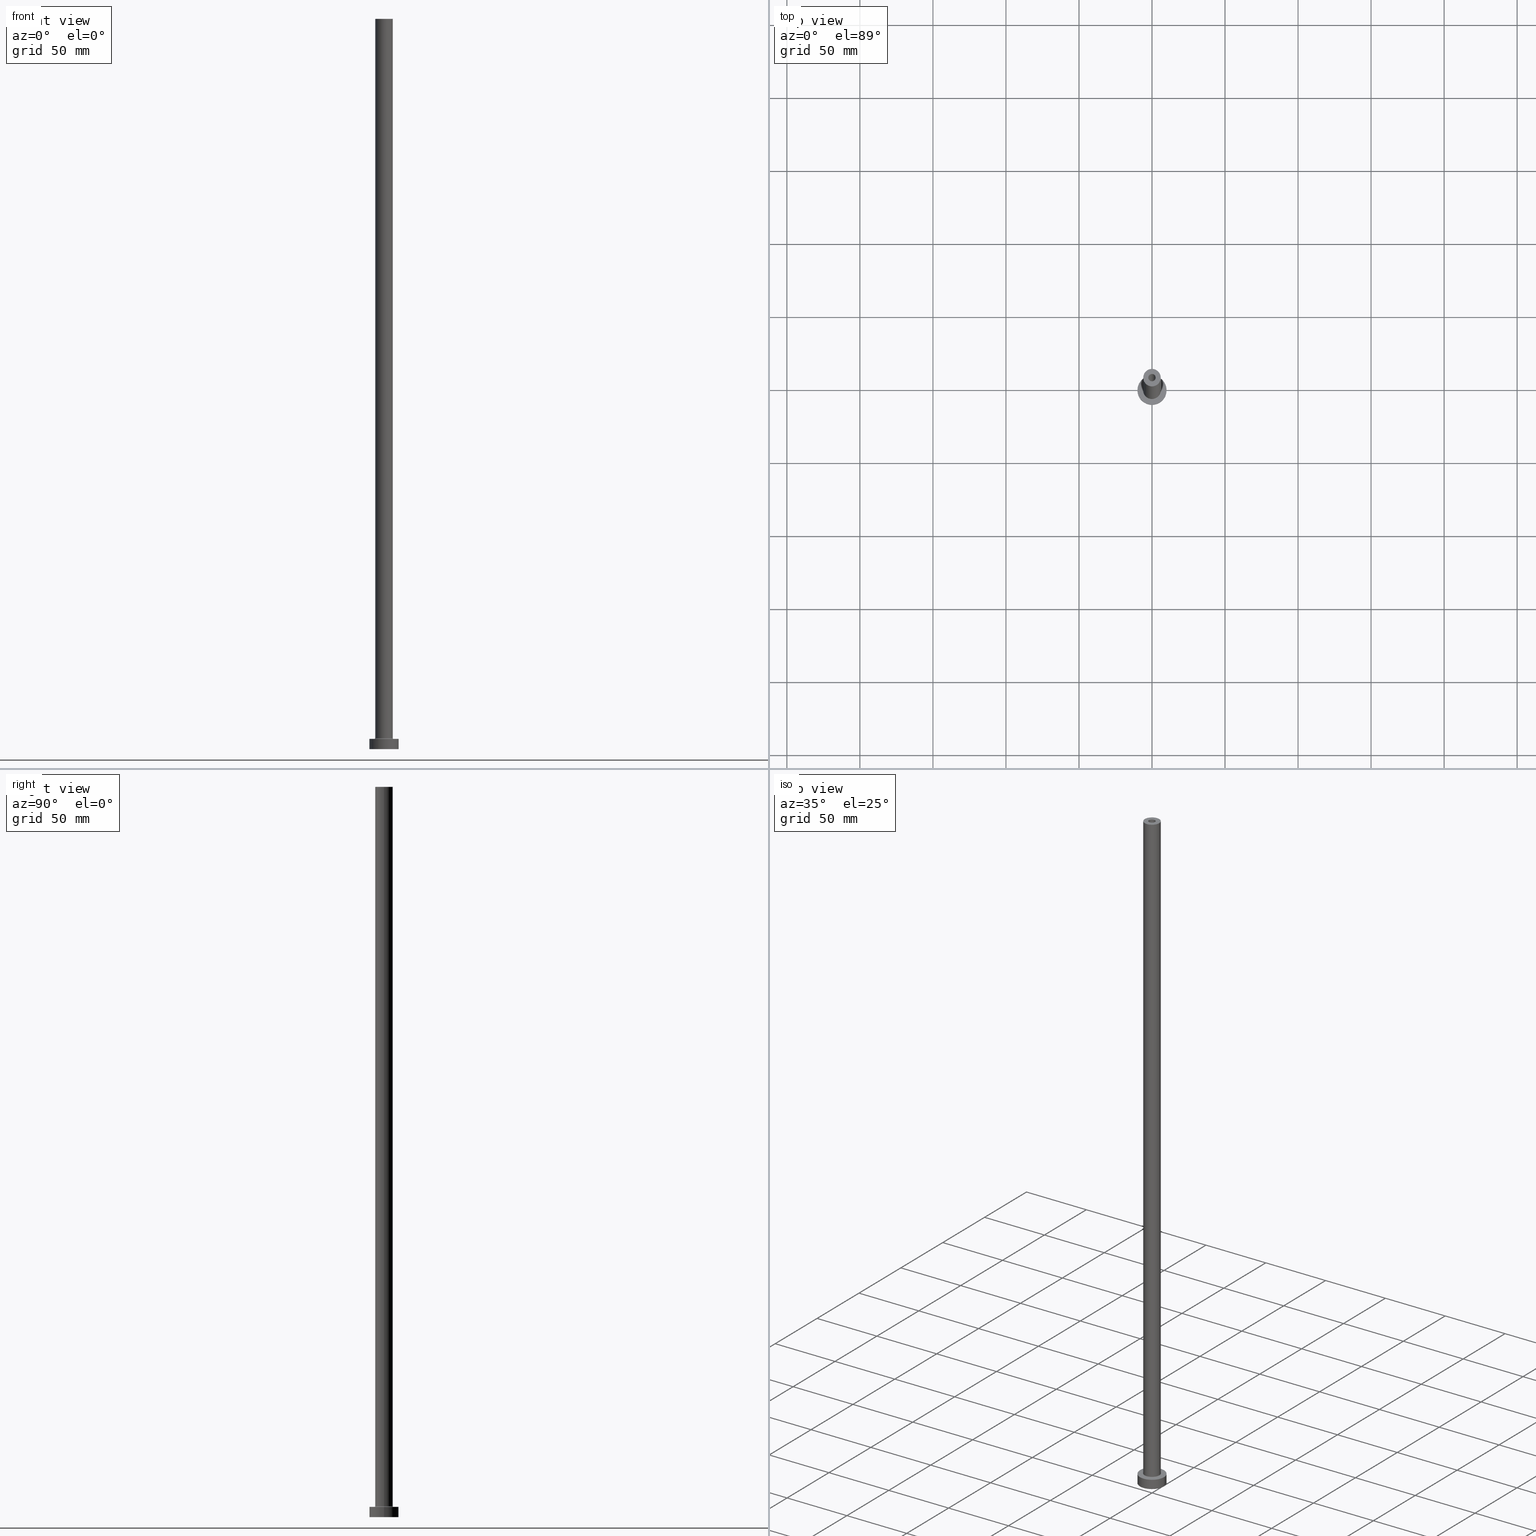
[diagram: canonical four-view strip — front | top / right | iso, engineering-drawing reading convention]
A machine part, canonical four-view strip (front | top / right | iso — engineering-drawing reading convention). The complete STEP part file that produces these views, byte-faithful:
ISO-10303-21;
HEADER;
FILE_DESCRIPTION (( 'STEP AP203' ),
    '1' );
FILE_NAME ('abd1.STEP',
    '2023-02-13T16:45:04',
    ( '' ),
    ( '' ),
    'SwSTEP 2.0',
    'SolidWorks 2019',
    '' );
FILE_SCHEMA (( 'CONFIG_CONTROL_DESIGN' ));
ENDSEC;

DATA;
#1 = DIRECTION ( 'NONE',  ( 0.000000000000000000, 0.000000000000000000, 1.000000000000000000 ) ) ;
#2 = ORIENTED_EDGE ( 'NONE', *, *, #287, .T. ) ;
#3 = DIRECTION ( 'NONE',  ( 1.000000000000000000, 0.000000000000000000, 0.000000000000000000 ) ) ;
#4 = AXIS2_PLACEMENT_3D ( 'NONE', #431, #364, #299 ) ;
#5 = DIRECTION ( 'NONE',  ( 1.000000000000000000, 0.000000000000000000, 0.000000000000000000 ) ) ;
#6 = CARTESIAN_POINT ( 'NONE',  ( 0.000000000000000000, 0.000000000000000000, 7.500000000000007105 ) ) ;
#7 = EDGE_CURVE ( 'NONE', #435, #124, #220, .T. ) ;
#8 = DIRECTION ( 'NONE',  ( -1.000000000000000000, 0.000000000000000000, 0.000000000000000000 ) ) ;
#9 = CARTESIAN_POINT ( 'NONE',  ( 0.000000000000000000, 0.000000000000000000, 7.500000000000007105 ) ) ;
#10 = ORIENTED_EDGE ( 'NONE', *, *, #95, .T. ) ;
#11 = APPLICATION_PROTOCOL_DEFINITION ( 'international standard', 'config_control_design', 1994, #327 ) ;
#12 = DIRECTION ( 'NONE',  ( -0.000000000000000000, -0.000000000000000000, -1.000000000000000000 ) ) ;
#13 = EDGE_CURVE ( 'NONE', #358, #191, #260, .T. ) ;
#14 = ORIENTED_EDGE ( 'NONE', *, *, #81, .F. ) ;
#15 = DIRECTION ( 'NONE',  ( 1.000000000000000000, 0.000000000000000000, 0.000000000000000000 ) ) ;
#16 = AXIS2_PLACEMENT_3D ( 'NONE', #87, #123, #441 ) ;
#17 = ORIENTED_EDGE ( 'NONE', *, *, #273, .F. ) ;
#18 = VERTEX_POINT ( 'NONE', #36 ) ;
#19 = PERSON_AND_ORGANIZATION_ROLE ( 'creator' ) ;
#20 = DIRECTION ( 'NONE',  ( -0.000000000000000000, -0.000000000000000000, -1.000000000000000000 ) ) ;
#21 = EDGE_LOOP ( 'NONE', ( #138, #152 ) ) ;
#22 = APPROVAL_DATE_TIME ( #388, #414 ) ;
#23 = VECTOR ( 'NONE', #27, 1000.000000000000000 ) ;
#24 = CARTESIAN_POINT ( 'NONE',  ( -2.649999999999999911, 0.000000000000000000, 462.4953318805773961 ) ) ;
#25 = ORIENTED_EDGE ( 'NONE', *, *, #102, .T. ) ;
#26 = DATE_TIME_ROLE ( 'classification_date' ) ;
#27 = DIRECTION ( 'NONE',  ( 0.000000000000000000, 0.000000000000000000, -1.000000000000000000 ) ) ;
#28 = CARTESIAN_POINT ( 'NONE',  ( 0.000000000000000000, 0.000000000000000000, 0.000000000000000000 ) ) ;
#29 = CIRCLE ( 'NONE', #216, 10.00000000000000000 ) ;
#30 = DIRECTION ( 'NONE',  ( 0.000000000000000000, 0.000000000000000000, 1.000000000000000000 ) ) ;
#31 = CARTESIAN_POINT ( 'NONE',  ( 10.00000000000000000, 1.224646799147353256E-15, 7.000000000000000000 ) ) ;
#32 = DIRECTION ( 'NONE',  ( 1.000000000000000000, 0.000000000000000000, 0.000000000000000000 ) ) ;
#33 = APPROVAL_DATE_TIME ( #105, #398 ) ;
#34 = FACE_OUTER_BOUND ( 'NONE', #382, .T. ) ;
#35 = AXIS2_PLACEMENT_3D ( 'NONE', #301, #457, #453 ) ;
#36 = CARTESIAN_POINT ( 'NONE',  ( 10.00000000000000000, 1.224646799147353256E-15, 7.000000000000000000 ) ) ;
#37 = APPROVAL_PERSON_ORGANIZATION ( #421, #398, #171 ) ;
#38 = DIRECTION ( 'NONE',  ( 1.000000000000000000, 0.000000000000000000, 0.000000000000000000 ) ) ;
#39 = EDGE_CURVE ( 'NONE', #18, #219, #316, .T. ) ;
#40 = PERSON_AND_ORGANIZATION ( #237, #250 ) ;
#41 = ORIENTED_EDGE ( 'NONE', *, *, #439, .F. ) ;
#42 =( NAMED_UNIT ( * ) SI_UNIT ( $, .STERADIAN. ) SOLID_ANGLE_UNIT ( ) );
#43 = CARTESIAN_POINT ( 'NONE',  ( 0.000000000000000000, 0.000000000000000000, 7.000000000000000000 ) ) ;
#44 = ADVANCED_FACE ( 'NONE', ( #161 ), #83, .F. ) ;
#45 = AXIS2_PLACEMENT_3D ( 'NONE', #73, #223, #366 ) ;
#46 = CARTESIAN_POINT ( 'NONE',  ( 0.000000000000000000, 0.000000000000000000, 7.500000000000007105 ) ) ;
#47 = ORIENTED_EDGE ( 'NONE', *, *, #194, .F. ) ;
#48 = DIRECTION ( 'NONE',  ( 1.000000000000000000, 0.000000000000000000, 0.000000000000000000 ) ) ;
#49 = CYLINDRICAL_SURFACE ( 'NONE', #384, 6.000000000000000888 ) ;
#50 = EDGE_LOOP ( 'NONE', ( #145, #142 ) ) ;
#51 = AXIS2_PLACEMENT_3D ( 'NONE', #345, #308, #446 ) ;
#52 = CARTESIAN_POINT ( 'NONE',  ( 0.000000000000000000, 0.000000000000000000, 455.0000000000000000 ) ) ;
#53 = PRODUCT ( 'abd1', 'abd1', '', ( #302 ) ) ;
#54 = TOROIDAL_SURFACE ( 'NONE', #368, 6.500000000000000888, 0.5000000000000000000 ) ;
#55 = ADVANCED_FACE ( 'NONE', ( #80 ), #54, .F. ) ;
#56 = PLANE ( 'NONE',  #224 ) ;
#57 = PERSON_AND_ORGANIZATION ( #237, #250 ) ;
#58 = CARTESIAN_POINT ( 'NONE',  ( 0.000000000000000000, 0.000000000000000000, 455.0000000000000000 ) ) ;
#59 = APPROVAL_STATUS ( 'not_yet_approved' ) ;
#60 = CIRCLE ( 'NONE', #359, 2.500000000000000000 ) ;
#61 = LOCAL_TIME ( 17, 45, 4.000000000000000000, #208 ) ;
#62 = ADVANCED_FACE ( 'NONE', ( #188, #347 ), #305, .T. ) ;
#63 = DIRECTION ( 'NONE',  ( 1.000000000000000000, 0.000000000000000000, -0.000000000000000000 ) ) ;
#64 = DESIGN_CONTEXT ( 'detailed design', #327, 'design' ) ;
#65 = ORIENTED_EDGE ( 'NONE', *, *, #350, .T. ) ;
#66 = CARTESIAN_POINT ( 'NONE',  ( 6.000000000000000888, 7.347880794884120722E-16, 500.0000000000000000 ) ) ;
#67 = ORIENTED_EDGE ( 'NONE', *, *, #350, .F. ) ;
#68 = DIRECTION ( 'NONE',  ( -0.000000000000000000, -0.000000000000000000, -1.000000000000000000 ) ) ;
#69 = VECTOR ( 'NONE', #68, 1000.000000000000000 ) ;
#70 = CARTESIAN_POINT ( 'NONE',  ( -6.500000000000000888, 7.960204194457796463E-16, 7.000000000000002665 ) ) ;
#71 = CARTESIAN_POINT ( 'NONE',  ( 0.000000000000000000, 0.000000000000000000, 500.0000000000000000 ) ) ;
#72 = FACE_OUTER_BOUND ( 'NONE', #97, .T. ) ;
#73 = CARTESIAN_POINT ( 'NONE',  ( 0.000000000000000000, 0.000000000000000000, 7.500000000000007105 ) ) ;
#74 = CARTESIAN_POINT ( 'NONE',  ( 2.500000000000000000, 3.061616997868382648E-16, 500.0000000000000000 ) ) ;
#75 = AXIS2_PLACEMENT_3D ( 'NONE', #317, #174, #285 ) ;
#76 = ADVANCED_FACE ( 'NONE', ( #440 ), #89, .T. ) ;
#77 = VERTEX_POINT ( 'NONE', #111 ) ;
#78 = CC_DESIGN_SECURITY_CLASSIFICATION ( #168, ( #374 ) ) ;
#79 = APPROVAL_DATE_TIME ( #278, #461 ) ;
#80 = FACE_OUTER_BOUND ( 'NONE', #166, .T. ) ;
#81 = EDGE_CURVE ( 'NONE', #426, #215, #427, .T. ) ;
#82 = VERTEX_POINT ( 'NONE', #371 ) ;
#83 = CYLINDRICAL_SURFACE ( 'NONE', #325, 2.500000000000000000 ) ;
#84 = CIRCLE ( 'NONE', #257, 2.649999999999999911 ) ;
#85 = ORIENTED_EDGE ( 'NONE', *, *, #336, .F. ) ;
#86 = DIRECTION ( 'NONE',  ( -1.000000000000000000, 0.000000000000000000, 0.000000000000000000 ) ) ;
#87 = CARTESIAN_POINT ( 'NONE',  ( 0.000000000000000000, 0.000000000000000000, 7.000000000000000000 ) ) ;
#88 = ORIENTED_EDGE ( 'NONE', *, *, #39, .T. ) ;
#89 = CYLINDRICAL_SURFACE ( 'NONE', #160, 6.000000000000000888 ) ;
#90 = ADVANCED_FACE ( 'NONE', ( #233 ), #49, .T. ) ;
#91 = DIRECTION ( 'NONE',  ( 1.000000000000000000, 0.000000000000000000, 0.000000000000000000 ) ) ;
#92 = APPROVAL_STATUS ( 'not_yet_approved' ) ;
#93 = CARTESIAN_POINT ( 'NONE',  ( 2.500000000000000000, 3.061616997868382648E-16, 500.0000000000000000 ) ) ;
#94 = PERSON_AND_ORGANIZATION ( #237, #250 ) ;
#95 = EDGE_CURVE ( 'NONE', #77, #393, #349, .T. ) ;
#96 = PLANE ( 'NONE',  #295 ) ;
#97 = EDGE_LOOP ( 'NONE', ( #229, #326, #378, #85 ) ) ;
#98 = DIRECTION ( 'NONE',  ( 0.000000000000000000, 0.000000000000000000, -1.000000000000000000 ) ) ;
#99 = AXIS2_PLACEMENT_3D ( 'NONE', #447, #193, #343 ) ;
#100 = DIRECTION ( 'NONE',  ( 1.224646799147353207E-16, 1.000000000000000000, -0.000000000000000000 ) ) ;
#101 = CARTESIAN_POINT ( 'NONE',  ( 6.000000000000000888, 7.347880794884120722E-16, 7.500000000000007105 ) ) ;
#102 = EDGE_CURVE ( 'NONE', #219, #18, #143, .T. ) ;
#103 = CIRCLE ( 'NONE', #340, 2.500000000000000000 ) ;
#104 = VECTOR ( 'NONE', #269, 1000.000000000000000 ) ;
#105 = DATE_AND_TIME ( #284, #61 ) ;
#106 = CARTESIAN_POINT ( 'NONE',  ( 2.500000000000000000, 3.061616997868382648E-16, 455.0000000000000000 ) ) ;
#107 = EDGE_LOOP ( 'NONE', ( #387, #297, #108, #275 ) ) ;
#108 = ORIENTED_EDGE ( 'NONE', *, *, #13, .T. ) ;
#109 = DIRECTION ( 'NONE',  ( -1.000000000000000000, 0.000000000000000000, 0.000000000000000000 ) ) ;
#110 = DATE_AND_TIME ( #312, #120 ) ;
#111 = CARTESIAN_POINT ( 'NONE',  ( 2.649999999999999911, 3.245314017740485962E-16, 0.000000000000000000 ) ) ;
#112 = CARTESIAN_POINT ( 'NONE',  ( 2.649999999999999911, 3.245314017740485962E-16, 462.4953318805773961 ) ) ;
#113 = CARTESIAN_POINT ( 'NONE',  ( 0.000000000000000000, 0.000000000000000000, 7.000000000000000000 ) ) ;
#114 = ORIENTED_EDGE ( 'NONE', *, *, #130, .T. ) ;
#115 = PERSON_AND_ORGANIZATION ( #237, #250 ) ;
#116 = DIRECTION ( 'NONE',  ( -0.000000000000000000, -0.000000000000000000, -1.000000000000000000 ) ) ;
#117 = AXIS2_PLACEMENT_3D ( 'NONE', #404, #261, #402 ) ;
#118 = CIRCLE ( 'NONE', #217, 2.500000000000000000 ) ;
#119 = ORIENTED_EDGE ( 'NONE', *, *, #365, .F. ) ;
#120 = LOCAL_TIME ( 17, 45, 4.000000000000000000, #407 ) ;
#121 = FACE_BOUND ( 'NONE', #443, .T. ) ;
#122 = EDGE_CURVE ( 'NONE', #191, #358, #424, .T. ) ;
#123 = DIRECTION ( 'NONE',  ( -0.000000000000000000, -0.000000000000000000, -1.000000000000000000 ) ) ;
#124 = VERTEX_POINT ( 'NONE', #150 ) ;
#125 = CARTESIAN_POINT ( 'NONE',  ( -10.00000000000000000, 0.000000000000000000, 7.000000000000000000 ) ) ;
#126 = CIRCLE ( 'NONE', #4, 6.000000000000000888 ) ;
#127 = PERSON_AND_ORGANIZATION ( #237, #250 ) ;
#128 = APPROVAL_PERSON_ORGANIZATION ( #40, #461, #200 ) ;
#129 = DIRECTION ( 'NONE',  ( 1.000000000000000000, 0.000000000000000000, -0.000000000000000000 ) ) ;
#130 = EDGE_CURVE ( 'NONE', #231, #82, #135, .T. ) ;
#131 = DATE_AND_TIME ( #246, #177 ) ;
#132 = CARTESIAN_POINT ( 'NONE',  ( -6.000000000000000888, 0.000000000000000000, 7.500000000000007105 ) ) ;
#133 = DIRECTION ( 'NONE',  ( 0.000000000000000000, 0.000000000000000000, 1.000000000000000000 ) ) ;
#134 = ORIENTED_EDGE ( 'NONE', *, *, #365, .T. ) ;
#135 = CIRCLE ( 'NONE', #51, 10.00000000000000000 ) ;
#136 = LOCAL_TIME ( 17, 45, 4.000000000000000000, #304 ) ;
#137 = CARTESIAN_POINT ( 'NONE',  ( 6.500000000000000888, 0.000000000000000000, 7.000000000000002665 ) ) ;
#138 = ORIENTED_EDGE ( 'NONE', *, *, #232, .F. ) ;
#139 = ADVANCED_FACE ( 'NONE', ( #121, #276 ), #235, .F. ) ;
#140 = DIRECTION ( 'NONE',  ( 0.000000000000000000, 0.000000000000000000, -1.000000000000000000 ) ) ;
#141 = LINE ( 'NONE', #147, #264 ) ;
#142 = ORIENTED_EDGE ( 'NONE', *, *, #401, .F. ) ;
#143 = CIRCLE ( 'NONE', #190, 10.00000000000000000 ) ;
#144 = DIRECTION ( 'NONE',  ( 1.000000000000000000, 0.000000000000000000, 0.000000000000000000 ) ) ;
#145 = ORIENTED_EDGE ( 'NONE', *, *, #310, .F. ) ;
#146 = EDGE_CURVE ( 'NONE', #393, #77, #84, .T. ) ;
#147 = CARTESIAN_POINT ( 'NONE',  ( -10.00000000000000000, 0.000000000000000000, 7.000000000000000000 ) ) ;
#148 = DIRECTION ( 'NONE',  ( 0.000000000000000000, -1.000000000000000000, 0.000000000000000000 ) ) ;
#149 = ORIENTED_EDGE ( 'NONE', *, *, #445, .F. ) ;
#150 = CARTESIAN_POINT ( 'NONE',  ( -2.500000000000000000, 0.000000000000000000, 500.0000000000000000 ) ) ;
#151 = DIRECTION ( 'NONE',  ( -1.000000000000000000, 0.000000000000000000, 0.000000000000000000 ) ) ;
#152 = ORIENTED_EDGE ( 'NONE', *, *, #130, .F. ) ;
#153 = SHAPE_DEFINITION_REPRESENTATION ( #383, #337 ) ;
#154 = DIRECTION ( 'NONE',  ( 1.000000000000000000, 0.000000000000000000, 0.000000000000000000 ) ) ;
#155 = DIRECTION ( 'NONE',  ( 0.000000000000000000, 0.000000000000000000, 1.000000000000000000 ) ) ;
#156 = AXIS2_PLACEMENT_3D ( 'NONE', #71, #362, #32 ) ;
#157 = CC_DESIGN_DATE_AND_TIME_ASSIGNMENT ( #131, #26, ( #168 ) ) ;
#158 = ORIENTED_EDGE ( 'NONE', *, *, #336, .T. ) ;
#159 = ADVANCED_FACE ( 'NONE', ( #425 ), #165, .T. ) ;
#160 = AXIS2_PLACEMENT_3D ( 'NONE', #341, #12, #151 ) ;
#161 = FACE_OUTER_BOUND ( 'NONE', #323, .T. ) ;
#162 = ORIENTED_EDGE ( 'NONE', *, *, #360, .T. ) ;
#163 = ORIENTED_EDGE ( 'NONE', *, *, #455, .F. ) ;
#164 = PERSON_AND_ORGANIZATION_ROLE ( 'design_owner' ) ;
#165 = CYLINDRICAL_SURFACE ( 'NONE', #380, 10.00000000000000000 ) ;
#166 = EDGE_LOOP ( 'NONE', ( #346, #227, #162, #14 ) ) ;
#167 = DIRECTION ( 'NONE',  ( 0.000000000000000000, 0.000000000000000000, 1.000000000000000000 ) ) ;
#168 = SECURITY_CLASSIFICATION ( '', '', #338 ) ;
#169 = FACE_OUTER_BOUND ( 'NONE', #309, .T. ) ;
#170 = EDGE_LOOP ( 'NONE', ( #423, #134, #114, #67 ) ) ;
#171 = APPROVAL_ROLE ( '' ) ;
#172 = MANIFOLD_SOLID_BREP ( 'Odebrat vysunut�m4', #267 ) ;
#173 = CARTESIAN_POINT ( 'NONE',  ( -6.000000000000000888, 0.000000000000000000, 500.0000000000000000 ) ) ;
#174 = DIRECTION ( 'NONE',  ( -0.000000000000000000, -0.000000000000000000, -1.000000000000000000 ) ) ;
#175 = VERTEX_POINT ( 'NONE', #420 ) ;
#176 = AXIS2_PLACEMENT_3D ( 'NONE', #253, #354, #320 ) ;
#177 = LOCAL_TIME ( 17, 45, 4.000000000000000000, #319 ) ;
#178 = LINE ( 'NONE', #31, #69 ) ;
#179 = AXIS2_PLACEMENT_3D ( 'NONE', #274, #412, #303 ) ;
#180 = DIRECTION ( 'NONE',  ( -0.000000000000000000, -0.000000000000000000, -1.000000000000000000 ) ) ;
#181 = EDGE_CURVE ( 'NONE', #259, #393, #451, .T. ) ;
#182 = EDGE_LOOP ( 'NONE', ( #211, #452 ) ) ;
#183 = CIRCLE ( 'NONE', #249, 2.649999999999999911 ) ;
#184 = CYLINDRICAL_SURFACE ( 'NONE', #444, 2.500000000000000000 ) ;
#185 = ORIENTED_EDGE ( 'NONE', *, *, #7, .F. ) ;
#186 = DIRECTION ( 'NONE',  ( -0.000000000000000000, -0.000000000000000000, -1.000000000000000000 ) ) ;
#187 = PERSON_AND_ORGANIZATION_ROLE ( 'design_supplier' ) ;
#188 = FACE_BOUND ( 'NONE', #418, .T. ) ;
#189 = ADVANCED_FACE ( 'NONE', ( #311, #244 ), #56, .F. ) ;
#190 = AXIS2_PLACEMENT_3D ( 'NONE', #113, #277, #381 ) ;
#191 = VERTEX_POINT ( 'NONE', #132 ) ;
#192 = AXIS2_PLACEMENT_3D ( 'NONE', #331, #262, #403 ) ;
#193 = DIRECTION ( 'NONE',  ( 0.000000000000000000, 0.000000000000000000, 1.000000000000000000 ) ) ;
#194 = EDGE_CURVE ( 'NONE', #124, #321, #288, .T. ) ;
#195 = VERTEX_POINT ( 'NONE', #173 ) ;
#196 = DIRECTION ( 'NONE',  ( 0.000000000000000000, 0.000000000000000000, -1.000000000000000000 ) ) ;
#197 = AXIS2_PLACEMENT_3D ( 'NONE', #334, #394, #5 ) ;
#198 = ORIENTED_EDGE ( 'NONE', *, *, #122, .F. ) ;
#199 = DIRECTION ( 'NONE',  ( 0.000000000000000000, 0.000000000000000000, 1.000000000000000000 ) ) ;
#200 = APPROVAL_ROLE ( '' ) ;
#201 = APPLICATION_CONTEXT ( 'configuration controlled 3d designs of mechanical parts and assemblies' ) ;
#202 = CARTESIAN_POINT ( 'NONE',  ( -2.500000000000000000, 0.000000000000000000, 500.0000000000000000 ) ) ;
#203 = ORIENTED_EDGE ( 'NONE', *, *, #401, .T. ) ;
#204 = PERSON_AND_ORGANIZATION_ROLE ( 'creator' ) ;
#205 = FACE_OUTER_BOUND ( 'NONE', #405, .T. ) ;
#206 = EDGE_LOOP ( 'NONE', ( #25, #88 ) ) ;
#207 = AXIS2_PLACEMENT_3D ( 'NONE', #6, #430, #144 ) ;
#208 = COORDINATED_UNIVERSAL_TIME_OFFSET ( 1, 0, .AHEAD. ) ;
#209 = CC_DESIGN_APPROVAL ( #398, ( #168 ) ) ;
#210 = LINE ( 'NONE', #392, #314 ) ;
#211 = ORIENTED_EDGE ( 'NONE', *, *, #379, .T. ) ;
#212 = DIRECTION ( 'NONE',  ( -0.000000000000000000, -0.000000000000000000, -1.000000000000000000 ) ) ;
#213 = EDGE_CURVE ( 'NONE', #435, #372, #241, .T. ) ;
#214 = FACE_OUTER_BOUND ( 'NONE', #449, .T. ) ;
#215 = VERTEX_POINT ( 'NONE', #137 ) ;
#216 = AXIS2_PLACEMENT_3D ( 'NONE', #279, #133, #417 ) ;
#217 = AXIS2_PLACEMENT_3D ( 'NONE', #434, #30, #460 ) ;
#218 = DIRECTION ( 'NONE',  ( 0.000000000000000000, 0.000000000000000000, 1.000000000000000000 ) ) ;
#219 = VERTEX_POINT ( 'NONE', #125 ) ;
#220 = CIRCLE ( 'NONE', #192, 2.500000000000000000 ) ;
#221 = DIRECTION ( 'NONE',  ( 0.000000000000000000, 0.000000000000000000, -1.000000000000000000 ) ) ;
#222 = CARTESIAN_POINT ( 'NONE',  ( 0.000000000000000000, 0.000000000000000000, 455.0000000000000000 ) ) ;
#223 = DIRECTION ( 'NONE',  ( 0.000000000000000000, 0.000000000000000000, 1.000000000000000000 ) ) ;
#224 = AXIS2_PLACEMENT_3D ( 'NONE', #58, #386, #129 ) ;
#225 = ORIENTED_EDGE ( 'NONE', *, *, #213, .T. ) ;
#226 = COORDINATED_UNIVERSAL_TIME_OFFSET ( 1, 0, .AHEAD. ) ;
#227 = ORIENTED_EDGE ( 'NONE', *, *, #13, .F. ) ;
#228 = ADVANCED_FACE ( 'NONE', ( #205 ), #247, .F. ) ;
#229 = ORIENTED_EDGE ( 'NONE', *, *, #213, .F. ) ;
#230 = TOROIDAL_SURFACE ( 'NONE', #207, 6.500000000000000888, 0.5000000000000000000 ) ;
#231 = VERTEX_POINT ( 'NONE', #454 ) ;
#232 = EDGE_CURVE ( 'NONE', #82, #231, #29, .T. ) ;
#233 = FACE_OUTER_BOUND ( 'NONE', #448, .T. ) ;
#234 = ORIENTED_EDGE ( 'NONE', *, *, #146, .T. ) ;
#235 = PLANE ( 'NONE',  #35 ) ;
#236 = ORIENTED_EDGE ( 'NONE', *, *, #353, .T. ) ;
#237 = PERSON ( 'NEUR�EN�', 'NEUR�EN�', 'NEUR�EN�', ('NEUR�EN�'), ('NEUR�EN�'), ('NEUR�EN�') ) ;
#238 = DIRECTION ( 'NONE',  ( 1.000000000000000000, 0.000000000000000000, 0.000000000000000000 ) ) ;
#239 = VERTEX_POINT ( 'NONE', #66 ) ;
#240 = APPLICATION_PROTOCOL_DEFINITION ( 'international standard', 'config_control_design', 1994, #201 ) ;
#241 = LINE ( 'NONE', #93, #290 ) ;
#242 = ORIENTED_EDGE ( 'NONE', *, *, #360, .F. ) ;
#243 = CALENDAR_DATE ( 2023, 13, 2 ) ;
#244 = FACE_OUTER_BOUND ( 'NONE', #50, .T. ) ;
#245 = ORIENTED_EDGE ( 'NONE', *, *, #146, .F. ) ;
#246 = CALENDAR_DATE ( 2023, 13, 2 ) ;
#247 = CYLINDRICAL_SURFACE ( 'NONE', #176, 2.649999999999999911 ) ;
#248 = UNCERTAINTY_MEASURE_WITH_UNIT (LENGTH_MEASURE( 1.000000000000000082E-05 ), #300, 'distance_accuracy_value', 'NONE');
#249 = AXIS2_PLACEMENT_3D ( 'NONE', #397, #1, #399 ) ;
#250 = ORGANIZATION ( 'NEUR�EN�', 'NEUR�EN�', '' ) ;
#251 = CC_DESIGN_PERSON_AND_ORGANIZATION_ASSIGNMENT ( #94, #390, ( #168 ) ) ;
#252 = ADVANCED_FACE ( 'NONE', ( #169 ), #352, .T. ) ;
#253 = CARTESIAN_POINT ( 'NONE',  ( 0.000000000000000000, 0.000000000000000000, 462.4953318805773961 ) ) ;
#254 = DIRECTION ( 'NONE',  ( 0.000000000000000000, 0.000000000000000000, 1.000000000000000000 ) ) ;
#255 = CARTESIAN_POINT ( 'NONE',  ( -2.500000000000000000, 0.000000000000000000, 455.0000000000000000 ) ) ;
#256 = CC_DESIGN_PERSON_AND_ORGANIZATION_ASSIGNMENT ( #369, #187, ( #374 ) ) ;
#257 = AXIS2_PLACEMENT_3D ( 'NONE', #28, #356, #91 ) ;
#258 = CYLINDRICAL_SURFACE ( 'NONE', #117, 2.649999999999999911 ) ;
#259 = VERTEX_POINT ( 'NONE', #429 ) ;
#260 = CIRCLE ( 'NONE', #45, 6.000000000000000888 ) ;
#261 = DIRECTION ( 'NONE',  ( 0.000000000000000000, 0.000000000000000000, -1.000000000000000000 ) ) ;
#262 = DIRECTION ( 'NONE',  ( 0.000000000000000000, 0.000000000000000000, 1.000000000000000000 ) ) ;
#263 = LINE ( 'NONE', #112, #104 ) ;
#264 = VECTOR ( 'NONE', #180, 1000.000000000000000 ) ;
#265 = CC_DESIGN_APPROVAL ( #414, ( #374 ) ) ;
#266 = ORIENTED_EDGE ( 'NONE', *, *, #310, .T. ) ;
#267 = CLOSED_SHELL ( 'NONE', ( #44, #228, #318, #76, #159, #252, #272, #139, #90, #62, #55, #395, #189, #396 ) ) ;
#268 = PRODUCT_RELATED_PRODUCT_CATEGORY ( 'detail', '', ( #53 ) ) ;
#269 = DIRECTION ( 'NONE',  ( 0.000000000000000000, 0.000000000000000000, -1.000000000000000000 ) ) ;
#270 = CARTESIAN_POINT ( 'NONE',  ( 0.000000000000000000, 0.000000000000000000, 500.0000000000000000 ) ) ;
#271 = ORIENTED_EDGE ( 'NONE', *, *, #95, .F. ) ;
#272 = ADVANCED_FACE ( 'NONE', ( #322, #422 ), #96, .T. ) ;
#273 = EDGE_CURVE ( 'NONE', #239, #358, #210, .T. ) ;
#274 = CARTESIAN_POINT ( 'NONE',  ( 0.000000000000000000, 0.000000000000000000, 0.000000000000000000 ) ) ;
#275 = ORIENTED_EDGE ( 'NONE', *, *, #353, .F. ) ;
#276 = FACE_OUTER_BOUND ( 'NONE', #21, .T. ) ;
#277 = DIRECTION ( 'NONE',  ( 0.000000000000000000, 0.000000000000000000, 1.000000000000000000 ) ) ;
#278 = DATE_AND_TIME ( #385, #136 ) ;
#279 = CARTESIAN_POINT ( 'NONE',  ( 0.000000000000000000, 0.000000000000000000, 0.000000000000000000 ) ) ;
#280 = AXIS2_PLACEMENT_3D ( 'NONE', #361, #148, #140 ) ;
#281 = EDGE_CURVE ( 'NONE', #191, #426, #406, .T. ) ;
#282 = APPROVAL_STATUS ( 'not_yet_approved' ) ;
#283 = CARTESIAN_POINT ( 'NONE',  ( 0.000000000000000000, 0.000000000000000000, 7.000000000000000000 ) ) ;
#284 = CALENDAR_DATE ( 2023, 13, 2 ) ;
#285 = DIRECTION ( 'NONE',  ( -1.000000000000000000, 0.000000000000000000, 0.000000000000000000 ) ) ;
#286 = CC_DESIGN_DATE_AND_TIME_ASSIGNMENT ( #110, #450, ( #363 ) ) ;
#287 = EDGE_CURVE ( 'NONE', #321, #372, #103, .T. ) ;
#288 = LINE ( 'NONE', #202, #416 ) ;
#289 = ORIENTED_EDGE ( 'NONE', *, *, #379, .F. ) ;
#290 = VECTOR ( 'NONE', #389, 1000.000000000000000 ) ;
#291 = CARTESIAN_POINT ( 'NONE',  ( -6.500000000000000888, 7.960204194457796463E-16, 7.500000000000007105 ) ) ;
#292 = DIRECTION ( 'NONE',  ( 1.000000000000000000, 0.000000000000000000, 0.000000000000000000 ) ) ;
#293 = CARTESIAN_POINT ( 'NONE',  ( -6.000000000000000888, 0.000000000000000000, 500.0000000000000000 ) ) ;
#294 = ORIENTED_EDGE ( 'NONE', *, *, #181, .T. ) ;
#295 = AXIS2_PLACEMENT_3D ( 'NONE', #391, #254, #63 ) ;
#296 = LINE ( 'NONE', #293, #332 ) ;
#297 = ORIENTED_EDGE ( 'NONE', *, *, #273, .T. ) ;
#298 = CARTESIAN_POINT ( 'NONE',  ( 0.000000000000000000, 0.000000000000000000, 455.0000000000000000 ) ) ;
#299 = DIRECTION ( 'NONE',  ( 1.000000000000000000, 0.000000000000000000, 0.000000000000000000 ) ) ;
#300 =( LENGTH_UNIT ( ) NAMED_UNIT ( * ) SI_UNIT ( .MILLI., .METRE. ) );
#301 = CARTESIAN_POINT ( 'NONE',  ( 0.000000000000000000, 0.000000000000000000, 0.000000000000000000 ) ) ;
#302 = MECHANICAL_CONTEXT ( 'NONE', #201, 'mechanical' ) ;
#303 = DIRECTION ( 'NONE',  ( 1.000000000000000000, 0.000000000000000000, 0.000000000000000000 ) ) ;
#304 = COORDINATED_UNIVERSAL_TIME_OFFSET ( 1, 0, .AHEAD. ) ;
#305 = PLANE ( 'NONE',  #99 ) ;
#306 = ORIENTED_EDGE ( 'NONE', *, *, #122, .T. ) ;
#307 = AXIS2_PLACEMENT_3D ( 'NONE', #291, #100, #357 ) ;
#308 = DIRECTION ( 'NONE',  ( 0.000000000000000000, 0.000000000000000000, 1.000000000000000000 ) ) ;
#309 = EDGE_LOOP ( 'NONE', ( #119, #344, #65, #329 ) ) ;
#310 = EDGE_CURVE ( 'NONE', #259, #175, #324, .T. ) ;
#311 = FACE_BOUND ( 'NONE', #415, .T. ) ;
#312 = CALENDAR_DATE ( 2023, 13, 2 ) ;
#313 = DIRECTION ( 'NONE',  ( -1.000000000000000000, 0.000000000000000000, 0.000000000000000000 ) ) ;
#314 = VECTOR ( 'NONE', #212, 1000.000000000000000 ) ;
#315 = CIRCLE ( 'NONE', #197, 6.500000000000000888 ) ;
#316 = CIRCLE ( 'NONE', #413, 10.00000000000000000 ) ;
#317 = CARTESIAN_POINT ( 'NONE',  ( 0.000000000000000000, 0.000000000000000000, 7.000000000000000000 ) ) ;
#318 = ADVANCED_FACE ( 'NONE', ( #214 ), #230, .F. ) ;
#319 = COORDINATED_UNIVERSAL_TIME_OFFSET ( 1, 0, .AHEAD. ) ;
#320 = DIRECTION ( 'NONE',  ( -1.000000000000000000, 0.000000000000000000, 0.000000000000000000 ) ) ;
#321 = VERTEX_POINT ( 'NONE', #255 ) ;
#322 = FACE_BOUND ( 'NONE', #400, .T. ) ;
#323 = EDGE_LOOP ( 'NONE', ( #459, #225, #442, #47 ) ) ;
#324 = CIRCLE ( 'NONE', #456, 2.649999999999999911 ) ;
#325 = AXIS2_PLACEMENT_3D ( 'NONE', #408, #196, #86 ) ;
#326 = ORIENTED_EDGE ( 'NONE', *, *, #7, .T. ) ;
#327 = APPLICATION_CONTEXT ( 'configuration controlled 3d designs of mechanical parts and assemblies' ) ;
#328 = CARTESIAN_POINT ( 'NONE',  ( 0.000000000000000000, 0.000000000000000000, 500.0000000000000000 ) ) ;
#329 = ORIENTED_EDGE ( 'NONE', *, *, #232, .T. ) ;
#330 = DIRECTION ( 'NONE',  ( 0.000000000000000000, 0.000000000000000000, 1.000000000000000000 ) ) ;
#331 = CARTESIAN_POINT ( 'NONE',  ( 0.000000000000000000, 0.000000000000000000, 500.0000000000000000 ) ) ;
#332 = VECTOR ( 'NONE', #186, 1000.000000000000000 ) ;
#333 = LOCAL_TIME ( 17, 45, 4.000000000000000000, #226 ) ;
#334 = CARTESIAN_POINT ( 'NONE',  ( 0.000000000000000000, 0.000000000000000000, 7.000000000000000000 ) ) ;
#335 = CC_DESIGN_PERSON_AND_ORGANIZATION_ASSIGNMENT ( #57, #204, ( #374 ) ) ;
#336 = EDGE_CURVE ( 'NONE', #372, #321, #60, .T. ) ;
#337 = ADVANCED_BREP_SHAPE_REPRESENTATION ( 'abd1', ( #172, #411 ), #458 ) ;
#338 = SECURITY_CLASSIFICATION_LEVEL ( 'unclassified' ) ;
#339 = CC_DESIGN_PERSON_AND_ORGANIZATION_ASSIGNMENT ( #351, #19, ( #363 ) ) ;
#340 = AXIS2_PLACEMENT_3D ( 'NONE', #52, #199, #292 ) ;
#341 = CARTESIAN_POINT ( 'NONE',  ( 0.000000000000000000, 0.000000000000000000, 500.0000000000000000 ) ) ;
#342 = CARTESIAN_POINT ( 'NONE',  ( 0.000000000000000000, 0.000000000000000000, 0.000000000000000000 ) ) ;
#343 = DIRECTION ( 'NONE',  ( 1.000000000000000000, 0.000000000000000000, -0.000000000000000000 ) ) ;
#344 = ORIENTED_EDGE ( 'NONE', *, *, #102, .F. ) ;
#345 = CARTESIAN_POINT ( 'NONE',  ( 0.000000000000000000, 0.000000000000000000, 0.000000000000000000 ) ) ;
#346 = ORIENTED_EDGE ( 'NONE', *, *, #281, .F. ) ;
#347 = FACE_OUTER_BOUND ( 'NONE', #182, .T. ) ;
#348 = ORIENTED_EDGE ( 'NONE', *, *, #439, .T. ) ;
#349 = CIRCLE ( 'NONE', #179, 2.649999999999999911 ) ;
#350 = EDGE_CURVE ( 'NONE', #219, #82, #141, .T. ) ;
#351 = PERSON_AND_ORGANIZATION ( #237, #250 ) ;
#352 = CYLINDRICAL_SURFACE ( 'NONE', #75, 10.00000000000000000 ) ;
#353 = EDGE_CURVE ( 'NONE', #195, #191, #296, .T. ) ;
#354 = DIRECTION ( 'NONE',  ( 0.000000000000000000, 0.000000000000000000, -1.000000000000000000 ) ) ;
#355 = CC_DESIGN_APPROVAL ( #461, ( #363 ) ) ;
#356 = DIRECTION ( 'NONE',  ( -0.000000000000000000, -0.000000000000000000, -1.000000000000000000 ) ) ;
#357 = DIRECTION ( 'NONE',  ( -1.000000000000000000, 1.224646799147351482E-16, 0.000000000000000000 ) ) ;
#358 = VERTEX_POINT ( 'NONE', #101 ) ;
#359 = AXIS2_PLACEMENT_3D ( 'NONE', #298, #218, #38 ) ;
#360 = EDGE_CURVE ( 'NONE', #358, #215, #373, .T. ) ;
#361 = CARTESIAN_POINT ( 'NONE',  ( 6.500000000000000888, 0.000000000000000000, 7.500000000000007105 ) ) ;
#362 = DIRECTION ( 'NONE',  ( 0.000000000000000000, 0.000000000000000000, 1.000000000000000000 ) ) ;
#363 = PRODUCT_DEFINITION ( 'NEZN�M�', '', #374, #64 ) ;
#364 = DIRECTION ( 'NONE',  ( 0.000000000000000000, 0.000000000000000000, 1.000000000000000000 ) ) ;
#365 = EDGE_CURVE ( 'NONE', #18, #231, #178, .T. ) ;
#366 = DIRECTION ( 'NONE',  ( 1.000000000000000000, 0.000000000000000000, 0.000000000000000000 ) ) ;
#367 = CIRCLE ( 'NONE', #156, 6.000000000000000888 ) ;
#368 = AXIS2_PLACEMENT_3D ( 'NONE', #9, #375, #238 ) ;
#369 = PERSON_AND_ORGANIZATION ( #237, #250 ) ;
#370 =( NAMED_UNIT ( * ) PLANE_ANGLE_UNIT ( ) SI_UNIT ( $, .RADIAN. ) );
#371 = CARTESIAN_POINT ( 'NONE',  ( -10.00000000000000000, 0.000000000000000000, 0.000000000000000000 ) ) ;
#372 = VERTEX_POINT ( 'NONE', #106 ) ;
#373 = CIRCLE ( 'NONE', #280, 0.5000000000000004441 ) ;
#374 = PRODUCT_DEFINITION_FORMATION_WITH_SPECIFIED_SOURCE ( 'LIBOVOLN�', '', #53, .NOT_KNOWN. ) ;
#375 = DIRECTION ( 'NONE',  ( 0.000000000000000000, 0.000000000000000000, 1.000000000000000000 ) ) ;
#376 = ORIENTED_EDGE ( 'NONE', *, *, #281, .T. ) ;
#377 = DIRECTION ( 'NONE',  ( 0.000000000000000000, 0.000000000000000000, 1.000000000000000000 ) ) ;
#378 = ORIENTED_EDGE ( 'NONE', *, *, #194, .T. ) ;
#379 = EDGE_CURVE ( 'NONE', #195, #239, #126, .T. ) ;
#380 = AXIS2_PLACEMENT_3D ( 'NONE', #283, #20, #313 ) ;
#381 = DIRECTION ( 'NONE',  ( 1.000000000000000000, 0.000000000000000000, 0.000000000000000000 ) ) ;
#382 = EDGE_LOOP ( 'NONE', ( #163, #203, #294, #234 ) ) ;
#383 = PRODUCT_DEFINITION_SHAPE ( 'NONE', 'NONE',  #363 ) ;
#384 = AXIS2_PLACEMENT_3D ( 'NONE', #270, #116, #8 ) ;
#385 = CALENDAR_DATE ( 2023, 13, 2 ) ;
#386 = DIRECTION ( 'NONE',  ( 0.000000000000000000, 0.000000000000000000, 1.000000000000000000 ) ) ;
#387 = ORIENTED_EDGE ( 'NONE', *, *, #433, .F. ) ;
#388 = DATE_AND_TIME ( #243, #333 ) ;
#389 = DIRECTION ( 'NONE',  ( 0.000000000000000000, 0.000000000000000000, -1.000000000000000000 ) ) ;
#390 = PERSON_AND_ORGANIZATION_ROLE ( 'classification_officer' ) ;
#391 = CARTESIAN_POINT ( 'NONE',  ( 0.000000000000000000, 0.000000000000000000, 7.000000000000000000 ) ) ;
#392 = CARTESIAN_POINT ( 'NONE',  ( 6.000000000000000888, 7.347880794884120722E-16, 500.0000000000000000 ) ) ;
#393 = VERTEX_POINT ( 'NONE', #436 ) ;
#394 = DIRECTION ( 'NONE',  ( -0.000000000000000000, -0.000000000000000000, -1.000000000000000000 ) ) ;
#395 = ADVANCED_FACE ( 'NONE', ( #34 ), #258, .F. ) ;
#396 = ADVANCED_FACE ( 'NONE', ( #72 ), #184, .F. ) ;
#397 = CARTESIAN_POINT ( 'NONE',  ( 0.000000000000000000, 0.000000000000000000, 455.0000000000000000 ) ) ;
#398 = APPROVAL ( #59, 'NEUR�EN�' ) ;
#399 = DIRECTION ( 'NONE',  ( 1.000000000000000000, 0.000000000000000000, 0.000000000000000000 ) ) ;
#400 = EDGE_LOOP ( 'NONE', ( #348, #409 ) ) ;
#401 = EDGE_CURVE ( 'NONE', #175, #259, #183, .T. ) ;
#402 = DIRECTION ( 'NONE',  ( -1.000000000000000000, 0.000000000000000000, 0.000000000000000000 ) ) ;
#403 = DIRECTION ( 'NONE',  ( 1.000000000000000000, 0.000000000000000000, 0.000000000000000000 ) ) ;
#404 = CARTESIAN_POINT ( 'NONE',  ( 0.000000000000000000, 0.000000000000000000, 462.4953318805773961 ) ) ;
#405 = EDGE_LOOP ( 'NONE', ( #266, #437, #10, #432 ) ) ;
#406 = CIRCLE ( 'NONE', #307, 0.5000000000000004441 ) ;
#407 = COORDINATED_UNIVERSAL_TIME_OFFSET ( 1, 0, .AHEAD. ) ;
#408 = CARTESIAN_POINT ( 'NONE',  ( 0.000000000000000000, 0.000000000000000000, 500.0000000000000000 ) ) ;
#409 = ORIENTED_EDGE ( 'NONE', *, *, #81, .T. ) ;
#410 = AXIS2_PLACEMENT_3D ( 'NONE', #46, #377, #48 ) ;
#411 = AXIS2_PLACEMENT_3D ( 'NONE', #342, #167, #154 ) ;
#412 = DIRECTION ( 'NONE',  ( -0.000000000000000000, -0.000000000000000000, -1.000000000000000000 ) ) ;
#413 = AXIS2_PLACEMENT_3D ( 'NONE', #43, #155, #15 ) ;
#414 = APPROVAL ( #282, 'NEUR�EN�' ) ;
#415 = EDGE_LOOP ( 'NONE', ( #2, #158 ) ) ;
#416 = VECTOR ( 'NONE', #98, 1000.000000000000000 ) ;
#417 = DIRECTION ( 'NONE',  ( 1.000000000000000000, 0.000000000000000000, 0.000000000000000000 ) ) ;
#418 = EDGE_LOOP ( 'NONE', ( #149, #185 ) ) ;
#419 = APPROVAL_ROLE ( '' ) ;
#420 = CARTESIAN_POINT ( 'NONE',  ( 2.649999999999999911, 3.245314017740485962E-16, 455.0000000000000000 ) ) ;
#421 = PERSON_AND_ORGANIZATION ( #237, #250 ) ;
#422 = FACE_OUTER_BOUND ( 'NONE', #206, .T. ) ;
#423 = ORIENTED_EDGE ( 'NONE', *, *, #39, .F. ) ;
#424 = CIRCLE ( 'NONE', #410, 6.000000000000000888 ) ;
#425 = FACE_OUTER_BOUND ( 'NONE', #170, .T. ) ;
#426 = VERTEX_POINT ( 'NONE', #70 ) ;
#427 = CIRCLE ( 'NONE', #16, 6.500000000000000888 ) ;
#428 = CC_DESIGN_PERSON_AND_ORGANIZATION_ASSIGNMENT ( #115, #164, ( #53 ) ) ;
#429 = CARTESIAN_POINT ( 'NONE',  ( -2.649999999999999911, 0.000000000000000000, 455.0000000000000000 ) ) ;
#430 = DIRECTION ( 'NONE',  ( 0.000000000000000000, 0.000000000000000000, 1.000000000000000000 ) ) ;
#431 = CARTESIAN_POINT ( 'NONE',  ( 0.000000000000000000, 0.000000000000000000, 500.0000000000000000 ) ) ;
#432 = ORIENTED_EDGE ( 'NONE', *, *, #181, .F. ) ;
#433 = EDGE_CURVE ( 'NONE', #239, #195, #367, .T. ) ;
#434 = CARTESIAN_POINT ( 'NONE',  ( 0.000000000000000000, 0.000000000000000000, 500.0000000000000000 ) ) ;
#435 = VERTEX_POINT ( 'NONE', #74 ) ;
#436 = CARTESIAN_POINT ( 'NONE',  ( -2.649999999999999911, 0.000000000000000000, 0.000000000000000000 ) ) ;
#437 = ORIENTED_EDGE ( 'NONE', *, *, #455, .T. ) ;
#438 = APPROVAL_PERSON_ORGANIZATION ( #127, #414, #419 ) ;
#439 = EDGE_CURVE ( 'NONE', #215, #426, #315, .T. ) ;
#440 = FACE_OUTER_BOUND ( 'NONE', #107, .T. ) ;
#441 = DIRECTION ( 'NONE',  ( 1.000000000000000000, 0.000000000000000000, 0.000000000000000000 ) ) ;
#442 = ORIENTED_EDGE ( 'NONE', *, *, #287, .F. ) ;
#443 = EDGE_LOOP ( 'NONE', ( #245, #271 ) ) ;
#444 = AXIS2_PLACEMENT_3D ( 'NONE', #328, #221, #109 ) ;
#445 = EDGE_CURVE ( 'NONE', #124, #435, #118, .T. ) ;
#446 = DIRECTION ( 'NONE',  ( 1.000000000000000000, 0.000000000000000000, 0.000000000000000000 ) ) ;
#447 = CARTESIAN_POINT ( 'NONE',  ( 0.000000000000000000, 0.000000000000000000, 500.0000000000000000 ) ) ;
#448 = EDGE_LOOP ( 'NONE', ( #17, #289, #236, #306 ) ) ;
#449 = EDGE_LOOP ( 'NONE', ( #198, #376, #41, #242 ) ) ;
#450 = DATE_TIME_ROLE ( 'creation_date' ) ;
#451 = LINE ( 'NONE', #24, #23 ) ;
#452 = ORIENTED_EDGE ( 'NONE', *, *, #433, .T. ) ;
#453 = DIRECTION ( 'NONE',  ( 1.000000000000000000, 0.000000000000000000, -0.000000000000000000 ) ) ;
#454 = CARTESIAN_POINT ( 'NONE',  ( 10.00000000000000000, 1.224646799147353256E-15, 0.000000000000000000 ) ) ;
#455 = EDGE_CURVE ( 'NONE', #175, #77, #263, .T. ) ;
#456 = AXIS2_PLACEMENT_3D ( 'NONE', #222, #330, #3 ) ;
#457 = DIRECTION ( 'NONE',  ( 0.000000000000000000, 0.000000000000000000, 1.000000000000000000 ) ) ;
#458 =( GEOMETRIC_REPRESENTATION_CONTEXT ( 3 ) GLOBAL_UNCERTAINTY_ASSIGNED_CONTEXT ( ( #248 ) ) GLOBAL_UNIT_ASSIGNED_CONTEXT ( ( #300, #370, #42 ) ) REPRESENTATION_CONTEXT ( 'NONE', 'WORKASPACE' ) );
#459 = ORIENTED_EDGE ( 'NONE', *, *, #445, .T. ) ;
#460 = DIRECTION ( 'NONE',  ( 1.000000000000000000, 0.000000000000000000, 0.000000000000000000 ) ) ;
#461 = APPROVAL ( #92, 'NEUR�EN�' ) ;
ENDSEC;
END-ISO-10303-21;
